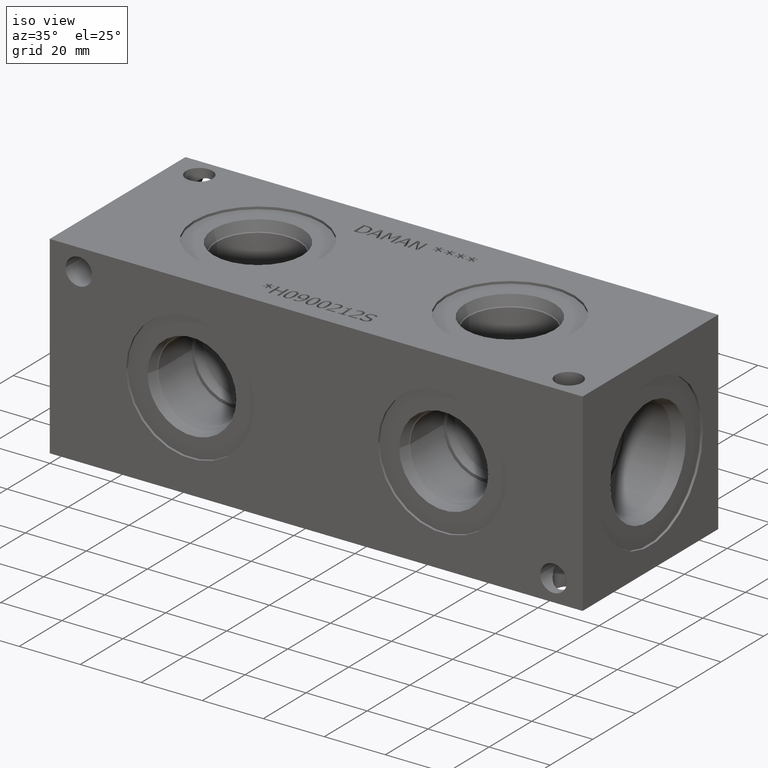
[diagram: clean part render]
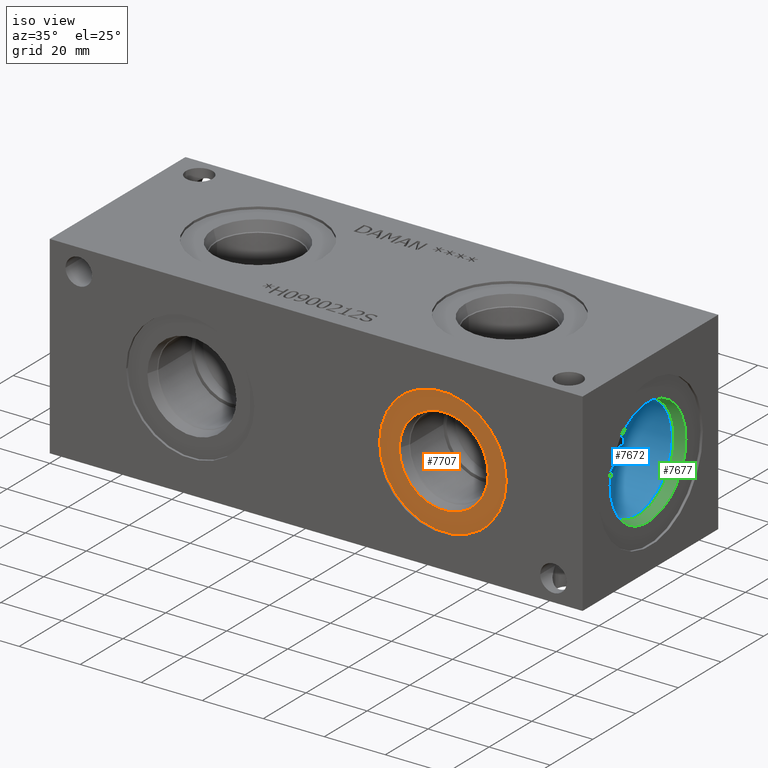
[diagram: same view with three faces highlighted in distinct colors, each labeled with its STEP entity id]
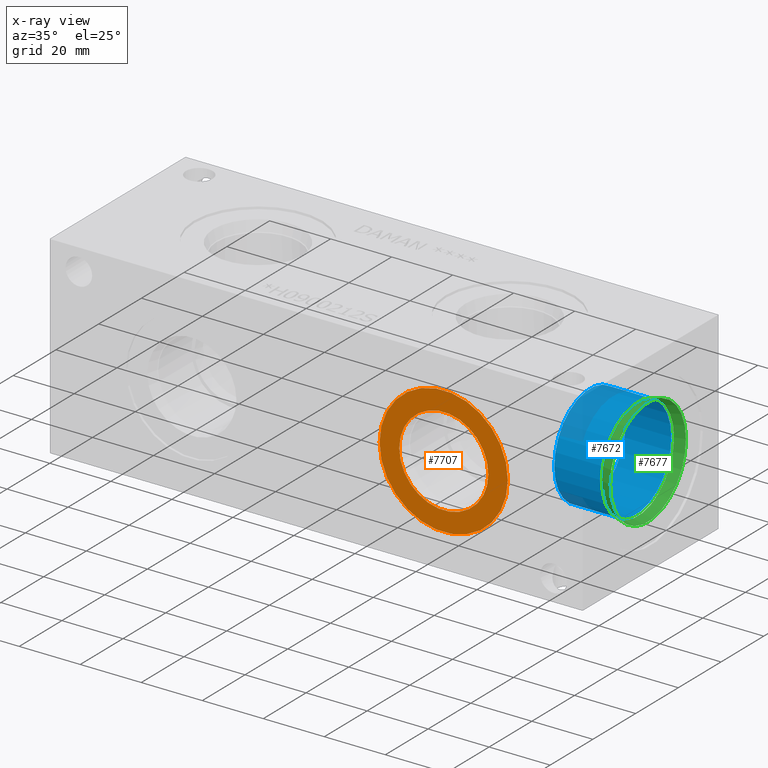
[diagram: x-ray of the same camera — body ghosted, the three highlighted faces saturated]
A machine part, iso view with three faces highlighted in distinct colors.
The next image is the same camera in x-ray (body ghosted, the three faces saturated) — at least one of them is partly hidden behind the body in this view.
Their STEP definitions:

[orange] entity #7707 — the highlighted planar face has unit normal (0, 1, 0).
#157=CIRCLE('',#8086,21.0185);
#158=CIRCLE('',#8087,21.0185);
#159=CIRCLE('',#8089,14.5923);
#160=CIRCLE('',#8090,14.5923);
#250=FACE_BOUND('',#1375,.T.);
#946=FACE_OUTER_BOUND('',#1374,.T.);
#1374=EDGE_LOOP('',(#6583,#6584));
#1375=EDGE_LOOP('',(#6585,#6586));
#3518=VERTEX_POINT('',#13223);
#3519=VERTEX_POINT('',#13225);
#3520=VERTEX_POINT('',#13229);
#3521=VERTEX_POINT('',#13230);
#4561=EDGE_CURVE('',#3518,#3519,#157,.T.);
#4562=EDGE_CURVE('',#3519,#3518,#158,.T.);
#4563=EDGE_CURVE('',#3520,#3521,#159,.T.);
#4564=EDGE_CURVE('',#3521,#3520,#160,.T.);
#6583=ORIENTED_EDGE('',*,*,#4562,.F.);
#6584=ORIENTED_EDGE('',*,*,#4561,.F.);
#6585=ORIENTED_EDGE('',*,*,#4563,.T.);
#6586=ORIENTED_EDGE('',*,*,#4564,.T.);
#7042=PLANE('',#8088);
#7707=ADVANCED_FACE('',(#946,#250),#7042,.F.);
#8086=AXIS2_PLACEMENT_3D('',#13226,#9512,#9513);
#8087=AXIS2_PLACEMENT_3D('',#13227,#9514,#9515);
#8088=AXIS2_PLACEMENT_3D('',#13228,#9516,#9517);
#8089=AXIS2_PLACEMENT_3D('',#13231,#9518,#9519);
#8090=AXIS2_PLACEMENT_3D('',#13232,#9520,#9521);
#9512=DIRECTION('center_axis',(0.,1.,0.));
#9513=DIRECTION('ref_axis',(1.,0.,0.));
#9514=DIRECTION('center_axis',(0.,1.,0.));
#9515=DIRECTION('ref_axis',(1.,0.,0.));
#9516=DIRECTION('center_axis',(0.,1.,0.));
#9517=DIRECTION('ref_axis',(0.,0.,1.));
#9518=DIRECTION('center_axis',(0.,1.,0.));
#9519=DIRECTION('ref_axis',(1.,0.,0.));
#9520=DIRECTION('center_axis',(0.,1.,0.));
#9521=DIRECTION('ref_axis',(1.,0.,0.));
#13223=CARTESIAN_POINT('',(107.5563,0.7874,31.75));
#13225=CARTESIAN_POINT('',(149.5933,0.7874,31.75));
#13226=CARTESIAN_POINT('Origin',(128.5748,0.7874,31.75));
#13227=CARTESIAN_POINT('Origin',(128.5748,0.7874,31.75));
#13228=CARTESIAN_POINT('Origin',(143.1671,0.7874,31.75));
#13229=CARTESIAN_POINT('',(143.1671,0.7874,31.75));
#13230=CARTESIAN_POINT('',(113.9825,0.7874,31.75));
#13231=CARTESIAN_POINT('Origin',(128.5748,0.7874,31.75));
#13232=CARTESIAN_POINT('Origin',(128.5748,0.7874,31.75));

[blue] entity #7672 — the highlighted cylindrical surface (bore or boss wall) has radius 16.6751 mm, axis along (1, 0, 0).
#28=CYLINDRICAL_SURFACE('',#7994,16.6751);
#107=CIRCLE('',#7991,16.6751);
#108=CIRCLE('',#7992,16.6751);
#110=CIRCLE('',#7995,16.6751);
#911=FACE_OUTER_BOUND('',#1335,.T.);
#1335=EDGE_LOOP('',(#6392,#6393,#6394,#6395,#6396));
#2085=LINE('',#12864,#2800);
#2800=VECTOR('',#9306,16.6751);
#3447=VERTEX_POINT('',#12855);
#3448=VERTEX_POINT('',#12856);
#3450=VERTEX_POINT('',#12862);
#4455=EDGE_CURVE('',#3447,#3448,#107,.T.);
#4456=EDGE_CURVE('',#3448,#3447,#108,.T.);
#4458=EDGE_CURVE('',#3450,#3450,#110,.T.);
#4459=EDGE_CURVE('',#3450,#3448,#2085,.T.);
#6392=ORIENTED_EDGE('',*,*,#4458,.F.);
#6393=ORIENTED_EDGE('',*,*,#4459,.T.);
#6394=ORIENTED_EDGE('',*,*,#4455,.F.);
#6395=ORIENTED_EDGE('',*,*,#4456,.F.);
#6396=ORIENTED_EDGE('',*,*,#4459,.F.);
#7672=ADVANCED_FACE('',(#911),#28,.F.);
#7991=AXIS2_PLACEMENT_3D('',#12857,#9296,#9297);
#7992=AXIS2_PLACEMENT_3D('',#12858,#9298,#9299);
#7994=AXIS2_PLACEMENT_3D('',#12861,#9302,#9303);
#7995=AXIS2_PLACEMENT_3D('',#12863,#9304,#9305);
#9296=DIRECTION('center_axis',(1.,0.,0.));
#9297=DIRECTION('ref_axis',(0.,1.,0.));
#9298=DIRECTION('center_axis',(1.,0.,0.));
#9299=DIRECTION('ref_axis',(0.,1.,0.));
#9302=DIRECTION('center_axis',(1.,0.,0.));
#9303=DIRECTION('ref_axis',(0.,1.,0.));
#9304=DIRECTION('center_axis',(-1.,0.,0.));
#9305=DIRECTION('ref_axis',(0.,1.,0.));
#9306=DIRECTION('',(-1.,0.,0.));
#12855=CARTESIAN_POINT('',(154.7876,48.4251,31.75));
#12856=CARTESIAN_POINT('',(154.7876,15.0749,31.75));
#12857=CARTESIAN_POINT('Origin',(154.7876,31.75,31.75));
#12858=CARTESIAN_POINT('Origin',(154.7876,31.75,31.75));
#12861=CARTESIAN_POINT('Origin',(164.7063,31.75,31.75));
#12862=CARTESIAN_POINT('',(169.801321153229,15.0749,31.75));
#12863=CARTESIAN_POINT('Origin',(169.801321153229,31.75,31.75));
#12864=CARTESIAN_POINT('',(164.7063,15.0749,31.75));

[green] entity #7677 — the highlighted conical surface has half-angle 15 deg.
#69=CONICAL_SURFACE('',#8004,8.8773,0.261799387799149);
#114=CIRCLE('',#8003,16.8783);
#115=CIRCLE('',#8005,17.7546);
#116=CIRCLE('',#8006,17.7546);
#916=FACE_OUTER_BOUND('',#1340,.T.);
#1340=EDGE_LOOP('',(#6416,#6417,#6418,#6419,#6420));
#2090=LINE('',#12885,#2805);
#2805=VECTOR('',#9331,8.8773);
#3454=VERTEX_POINT('',#12878);
#3455=VERTEX_POINT('',#12882);
#3456=VERTEX_POINT('',#12883);
#4466=EDGE_CURVE('',#3454,#3454,#114,.T.);
#4468=EDGE_CURVE('',#3455,#3456,#115,.T.);
#4469=EDGE_CURVE('',#3456,#3454,#2090,.T.);
#4470=EDGE_CURVE('',#3456,#3455,#116,.T.);
#6416=ORIENTED_EDGE('',*,*,#4468,.T.);
#6417=ORIENTED_EDGE('',*,*,#4469,.T.);
#6418=ORIENTED_EDGE('',*,*,#4466,.T.);
#6419=ORIENTED_EDGE('',*,*,#4469,.F.);
#6420=ORIENTED_EDGE('',*,*,#4470,.T.);
#7677=ADVANCED_FACE('',(#916),#69,.F.);
#8003=AXIS2_PLACEMENT_3D('',#12879,#9324,#9325);
#8004=AXIS2_PLACEMENT_3D('',#12881,#9327,#9328);
#8005=AXIS2_PLACEMENT_3D('',#12884,#9329,#9330);
#8006=AXIS2_PLACEMENT_3D('',#12886,#9332,#9333);
#9324=DIRECTION('center_axis',(-1.,0.,0.));
#9325=DIRECTION('ref_axis',(0.,1.,0.));
#9327=DIRECTION('center_axis',(1.,0.,0.));
#9328=DIRECTION('ref_axis',(0.,1.,0.));
#9329=DIRECTION('center_axis',(1.,0.,0.));
#9330=DIRECTION('ref_axis',(0.,1.,0.));
#9331=DIRECTION('',(-0.965925826289068,0.258819045102521,3.16961915143176E-17));
#9332=DIRECTION('center_axis',(1.,0.,0.));
#9333=DIRECTION('ref_axis',(0.,1.,0.));
#12878=CARTESIAN_POINT('',(170.559673877327,14.8717,31.75));
#12879=CARTESIAN_POINT('Origin',(170.559673877327,31.75,31.75));
#12881=CARTESIAN_POINT('Origin',(140.699535365969,31.75,31.75));
#12882=CARTESIAN_POINT('',(173.83007,49.5046,31.75));
#12883=CARTESIAN_POINT('',(173.83007,13.9954,31.75));
#12884=CARTESIAN_POINT('Origin',(173.83007,31.75,31.75));
#12885=CARTESIAN_POINT('',(140.699535365969,22.8727,31.75));
#12886=CARTESIAN_POINT('Origin',(173.83007,31.75,31.75));